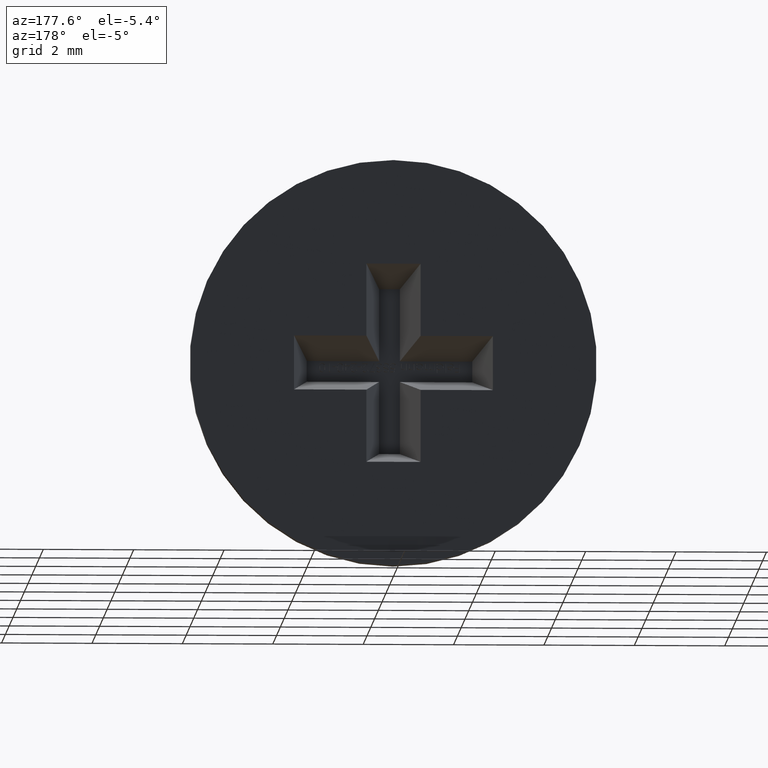
[diagram: clean part render]
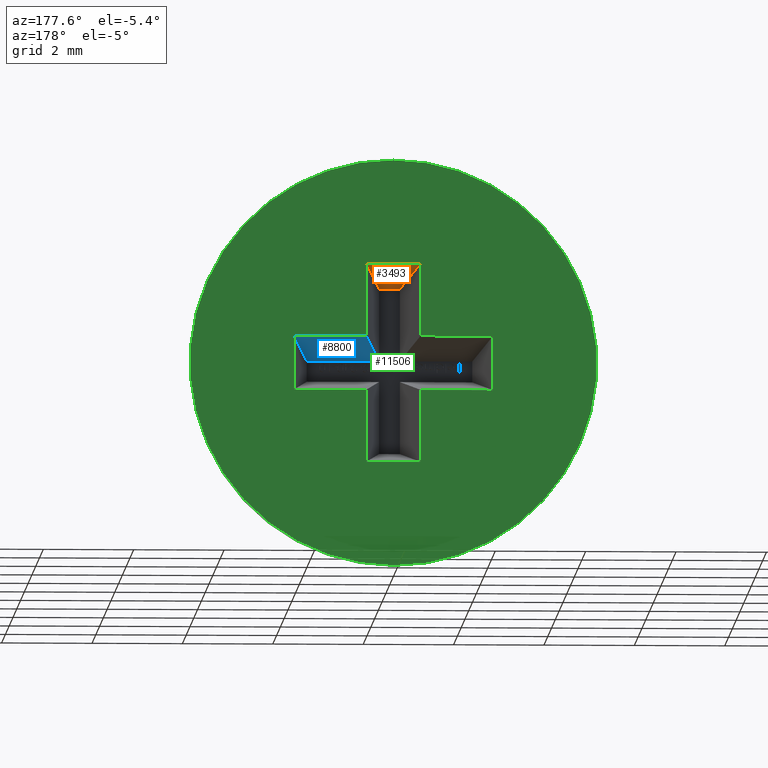
[diagram: same view with three faces highlighted in distinct colors, each labeled with its STEP entity id]
A machine part, auxiliary view with three faces highlighted in distinct colors.
Their STEP definitions:

[orange] entity #3493 — the highlighted planar face has unit normal (0, -0.1736, 0.9848).
#747 = LINE ( 'NONE', #11670, #7813 ) ;
#1861 = FACE_OUTER_BOUND ( 'NONE', #8673, .T. ) ;
#2108 = EDGE_CURVE ( 'NONE', #9832, #11550, #6100, .T. ) ;
#2324 = ORIENTED_EDGE ( 'NONE', *, *, #8225, .T. ) ;
#2517 = DIRECTION ( 'NONE',  ( 0.1710878697460355400, 0.9702875252478139200, 0.1710878697460355400 ) ) ;
#2919 = VECTOR ( 'NONE', #8507, 1000.000000000000000 ) ;
#3493 = ADVANCED_FACE ( 'NONE', ( #1861 ), #13533, .F. ) ;
#3622 = CARTESIAN_POINT ( 'NONE',  ( -0.5531663053212211300, 9.734392918822719000, 2.153166305321222200 ) ) ;
#3802 = LINE ( 'NONE', #3622, #12905 ) ;
#4331 = CARTESIAN_POINT ( 'NONE',  ( 0.6000000000000005300, 10.00000000000000000, 2.200000000000000200 ) ) ;
#4406 = CARTESIAN_POINT ( 'NONE',  ( 0.2297133405122240800, 7.900000000000000400, 1.829713340512223700 ) ) ;
#4957 = DIRECTION ( 'NONE',  ( 1.000000000000000000, 0.0000000000000000000, 0.0000000000000000000 ) ) ;
#5247 = VERTEX_POINT ( 'NONE', #9698 ) ;
#6100 = LINE ( 'NONE', #8229, #14521 ) ;
#7813 = VECTOR ( 'NONE', #4957, 1000.000000000000000 ) ;
#8225 = EDGE_CURVE ( 'NONE', #5247, #10188, #3802, .T. ) ;
#8229 = CARTESIAN_POINT ( 'NONE',  ( 0.5648747289909168400, 9.800794689117038800, 2.164874728990916300 ) ) ;
#8507 = DIRECTION ( 'NONE',  ( 1.000000000000000000, 0.0000000000000000000, 0.0000000000000000000 ) ) ;
#8673 = EDGE_LOOP ( 'NONE', ( #12567, #10295, #9049, #2324 ) ) ;
#9049 = ORIENTED_EDGE ( 'NONE', *, *, #10021, .F. ) ;
#9123 = DIRECTION ( 'NONE',  ( -0.1710878697460355100, 0.9702875252478139200, 0.1710878697460355400 ) ) ;
#9397 = LINE ( 'NONE', #11776, #2919 ) ;
#9698 = CARTESIAN_POINT ( 'NONE',  ( -0.2297133405122230600, 7.900000000000000400, 1.829713340512223700 ) ) ;
#9832 = VERTEX_POINT ( 'NONE', #4406 ) ;
#10021 = EDGE_CURVE ( 'NONE', #5247, #9832, #9397, .T. ) ;
#10188 = VERTEX_POINT ( 'NONE', #12262 ) ;
#10295 = ORIENTED_EDGE ( 'NONE', *, *, #2108, .F. ) ;
#10370 = EDGE_CURVE ( 'NONE', #10188, #11550, #747, .T. ) ;
#10589 = CARTESIAN_POINT ( 'NONE',  ( -0.5999999999999994200, 10.00000000000000000, 2.200000000000000200 ) ) ;
#11550 = VERTEX_POINT ( 'NONE', #4331 ) ;
#11658 = DIRECTION ( 'NONE',  ( 0.0000000000000000000, -0.9848077530122080200, -0.1736481776669303600 ) ) ;
#11670 = CARTESIAN_POINT ( 'NONE',  ( -0.5999999999999994200, 10.00000000000000000, 2.200000000000000200 ) ) ;
#11776 = CARTESIAN_POINT ( 'NONE',  ( -0.5999999999999994200, 7.900000000000000400, 1.829713340512223700 ) ) ;
#12262 = CARTESIAN_POINT ( 'NONE',  ( -0.5999999999999994200, 10.00000000000000000, 2.200000000000000200 ) ) ;
#12496 = AXIS2_PLACEMENT_3D ( 'NONE', #10589, #12682, #11658 ) ;
#12567 = ORIENTED_EDGE ( 'NONE', *, *, #10370, .T. ) ;
#12682 = DIRECTION ( 'NONE',  ( 0.0000000000000000000, -0.1736481776669303900, 0.9848077530122081300 ) ) ;
#12905 = VECTOR ( 'NONE', #9123, 1000.000000000000100 ) ;
#13533 = PLANE ( 'NONE',  #12496 ) ;
#14521 = VECTOR ( 'NONE', #2517, 1000.000000000000100 ) ;

[blue] entity #8800 — the highlighted planar face has unit normal (0, -0.1736, 0.9848).
#47 = DIRECTION ( 'NONE',  ( 1.000000000000000000, 0.0000000000000000000, 0.0000000000000000000 ) ) ;
#120 = EDGE_CURVE ( 'NONE', #1582, #12308, #4032, .T. ) ;
#129 = CARTESIAN_POINT ( 'NONE',  ( 2.200000000000000600, 10.00000000000000000, 0.5999999999999999800 ) ) ;
#238 = DIRECTION ( 'NONE',  ( 0.1710878697460355400, 0.9702875252478139200, 0.1710878697460355400 ) ) ;
#259 = VECTOR ( 'NONE', #47, 1000.000000000000000 ) ;
#560 = ORIENTED_EDGE ( 'NONE', *, *, #120, .T. ) ;
#824 = EDGE_LOOP ( 'NONE', ( #11819, #3402, #8449, #560 ) ) ;
#1141 = CARTESIAN_POINT ( 'NONE',  ( 0.6000000000000005300, 10.00000000000000000, 0.5999999999999999800 ) ) ;
#1558 = VERTEX_POINT ( 'NONE', #129 ) ;
#1582 = VERTEX_POINT ( 'NONE', #8093 ) ;
#3402 = ORIENTED_EDGE ( 'NONE', *, *, #8584, .F. ) ;
#4032 = LINE ( 'NONE', #6972, #10704 ) ;
#4313 = VECTOR ( 'NONE', #4557, 1000.000000000000000 ) ;
#4502 = LINE ( 'NONE', #11965, #14476 ) ;
#4550 = DIRECTION ( 'NONE',  ( 0.0000000000000000000, -0.1736481776669303900, 0.9848077530122081300 ) ) ;
#4557 = DIRECTION ( 'NONE',  ( 1.000000000000000000, 0.0000000000000000000, 0.0000000000000000000 ) ) ;
#6527 = DIRECTION ( 'NONE',  ( 0.1710878697460355400, 0.9702875252478139200, 0.1710878697460355400 ) ) ;
#6972 = CARTESIAN_POINT ( 'NONE',  ( 0.6000000000000005300, 10.00000000000000000, 0.5999999999999999800 ) ) ;
#7753 = AXIS2_PLACEMENT_3D ( 'NONE', #10149, #4550, #12356 ) ;
#7930 = PLANE ( 'NONE',  #7753 ) ;
#8093 = CARTESIAN_POINT ( 'NONE',  ( 0.2297133405122240800, 7.900000000000000400, 0.2297133405122235600 ) ) ;
#8449 = ORIENTED_EDGE ( 'NONE', *, *, #9014, .F. ) ;
#8584 = EDGE_CURVE ( 'NONE', #8746, #1558, #4502, .T. ) ;
#8746 = VERTEX_POINT ( 'NONE', #11193 ) ;
#8800 = ADVANCED_FACE ( 'NONE', ( #12714 ), #7930, .F. ) ;
#9014 = EDGE_CURVE ( 'NONE', #1582, #8746, #13431, .T. ) ;
#10149 = CARTESIAN_POINT ( 'NONE',  ( 0.6000000000000005300, 10.00000000000000000, 0.5999999999999999800 ) ) ;
#10704 = VECTOR ( 'NONE', #238, 1000.000000000000100 ) ;
#11098 = EDGE_CURVE ( 'NONE', #12308, #1558, #12367, .T. ) ;
#11193 = CARTESIAN_POINT ( 'NONE',  ( 1.829713340512224100, 7.900000000000000400, 0.2297133405122235600 ) ) ;
#11235 = CARTESIAN_POINT ( 'NONE',  ( 0.6000000000000005300, 7.900000000000000400, 0.2297133405122235600 ) ) ;
#11819 = ORIENTED_EDGE ( 'NONE', *, *, #11098, .T. ) ;
#11965 = CARTESIAN_POINT ( 'NONE',  ( 2.153166305321222700, 9.734392918822719000, 0.5531663053212216900 ) ) ;
#12308 = VERTEX_POINT ( 'NONE', #14428 ) ;
#12356 = DIRECTION ( 'NONE',  ( 0.0000000000000000000, -0.9848077530122080200, -0.1736481776669303600 ) ) ;
#12367 = LINE ( 'NONE', #1141, #4313 ) ;
#12714 = FACE_OUTER_BOUND ( 'NONE', #824, .T. ) ;
#13431 = LINE ( 'NONE', #11235, #259 ) ;
#14428 = CARTESIAN_POINT ( 'NONE',  ( 0.6000000000000005300, 10.00000000000000000, 0.5999999999999999800 ) ) ;
#14476 = VECTOR ( 'NONE', #6527, 1000.000000000000100 ) ;

[green] entity #11506 — the highlighted planar face has unit normal (0, 1, 0).
#129 = CARTESIAN_POINT ( 'NONE',  ( 2.200000000000000600, 10.00000000000000000, 0.5999999999999999800 ) ) ;
#223 = CARTESIAN_POINT ( 'NONE',  ( -0.5999999999999996400, 10.00000000000000000, 0.5999999999999999800 ) ) ;
#260 = VERTEX_POINT ( 'NONE', #8926 ) ;
#336 = CARTESIAN_POINT ( 'NONE',  ( -0.5999999999999996400, 10.00000000000000000, -0.5999999999999999800 ) ) ;
#425 = VECTOR ( 'NONE', #12482, 1000.000000000000000 ) ;
#439 = VECTOR ( 'NONE', #3107, 1000.000000000000000 ) ;
#495 = CARTESIAN_POINT ( 'NONE',  ( 0.6000000000000005300, 10.00000000000000000, 0.5999999999999999800 ) ) ;
#589 = LINE ( 'NONE', #10852, #2914 ) ;
#707 = CARTESIAN_POINT ( 'NONE',  ( -2.199999999999999700, 10.00000000000000000, -0.5999999999999999800 ) ) ;
#718 = ORIENTED_EDGE ( 'NONE', *, *, #10370, .F. ) ;
#747 = LINE ( 'NONE', #11670, #7813 ) ;
#817 = LINE ( 'NONE', #2405, #11712 ) ;
#831 = CIRCLE ( 'NONE', #4549, 4.500000000000000000 ) ;
#1141 = CARTESIAN_POINT ( 'NONE',  ( 0.6000000000000005300, 10.00000000000000000, 0.5999999999999999800 ) ) ;
#1193 = EDGE_CURVE ( 'NONE', #6330, #6330, #831, .T. ) ;
#1558 = VERTEX_POINT ( 'NONE', #129 ) ;
#1585 = DIRECTION ( 'NONE',  ( -0.0000000000000000000, -0.0000000000000000000, -1.000000000000000000 ) ) ;
#1628 = AXIS2_PLACEMENT_3D ( 'NONE', #5352, #11131, #6471 ) ;
#1883 = VECTOR ( 'NONE', #1585, 1000.000000000000000 ) ;
#2151 = VECTOR ( 'NONE', #10425, 1000.000000000000000 ) ;
#2405 = CARTESIAN_POINT ( 'NONE',  ( 0.5999999999999999800, 10.00000000000000000, -2.200000000000000200 ) ) ;
#2473 = EDGE_CURVE ( 'NONE', #5036, #10949, #817, .T. ) ;
#2633 = ORIENTED_EDGE ( 'NONE', *, *, #11486, .F. ) ;
#2780 = EDGE_CURVE ( 'NONE', #6621, #12772, #4168, .T. ) ;
#2914 = VECTOR ( 'NONE', #11738, 1000.000000000000000 ) ;
#3107 = DIRECTION ( 'NONE',  ( -1.000000000000000000, -0.0000000000000000000, -0.0000000000000000000 ) ) ;
#3144 = LINE ( 'NONE', #495, #1883 ) ;
#3292 = DIRECTION ( 'NONE',  ( 0.0000000000000000000, 0.0000000000000000000, 1.000000000000000000 ) ) ;
#4130 = ORIENTED_EDGE ( 'NONE', *, *, #11098, .F. ) ;
#4168 = LINE ( 'NONE', #14204, #12043 ) ;
#4180 = EDGE_LOOP ( 'NONE', ( #11800 ) ) ;
#4292 = ORIENTED_EDGE ( 'NONE', *, *, #6049, .F. ) ;
#4313 = VECTOR ( 'NONE', #4557, 1000.000000000000000 ) ;
#4331 = CARTESIAN_POINT ( 'NONE',  ( 0.6000000000000005300, 10.00000000000000000, 2.200000000000000200 ) ) ;
#4421 = VERTEX_POINT ( 'NONE', #7516 ) ;
#4480 = EDGE_CURVE ( 'NONE', #7635, #6621, #8358, .T. ) ;
#4549 = AXIS2_PLACEMENT_3D ( 'NONE', #7035, #7134, #13793 ) ;
#4557 = DIRECTION ( 'NONE',  ( 1.000000000000000000, 0.0000000000000000000, 0.0000000000000000000 ) ) ;
#4598 = CARTESIAN_POINT ( 'NONE',  ( -0.5999999999999999800, 10.00000000000000000, -2.200000000000000200 ) ) ;
#4724 = DIRECTION ( 'NONE',  ( -2.032879073410320300E-016, -0.0000000000000000000, -1.000000000000000000 ) ) ;
#4957 = DIRECTION ( 'NONE',  ( 1.000000000000000000, 0.0000000000000000000, 0.0000000000000000000 ) ) ;
#5036 = VERTEX_POINT ( 'NONE', #13112 ) ;
#5333 = CARTESIAN_POINT ( 'NONE',  ( -0.5999999999999999800, 10.00000000000000000, -2.200000000000000200 ) ) ;
#5352 = CARTESIAN_POINT ( 'NONE',  ( 0.0000000000000000000, 10.00000000000000000, 0.0000000000000000000 ) ) ;
#6042 = VECTOR ( 'NONE', #8499, 1000.000000000000000 ) ;
#6049 = EDGE_CURVE ( 'NONE', #10949, #11119, #12234, .T. ) ;
#6263 = ORIENTED_EDGE ( 'NONE', *, *, #2780, .F. ) ;
#6310 = EDGE_CURVE ( 'NONE', #11550, #12308, #3144, .T. ) ;
#6330 = VERTEX_POINT ( 'NONE', #10070 ) ;
#6471 = DIRECTION ( 'NONE',  ( 0.0000000000000000000, -0.0000000000000000000, 1.000000000000000000 ) ) ;
#6621 = VERTEX_POINT ( 'NONE', #10420 ) ;
#6881 = ORIENTED_EDGE ( 'NONE', *, *, #2473, .F. ) ;
#7035 = CARTESIAN_POINT ( 'NONE',  ( 0.0000000000000000000, 10.00000000000000000, 0.0000000000000000000 ) ) ;
#7134 = DIRECTION ( 'NONE',  ( -0.0000000000000000000, -1.000000000000000000, -0.0000000000000000000 ) ) ;
#7368 = CARTESIAN_POINT ( 'NONE',  ( -2.199999999999999700, 10.00000000000000000, 0.5999999999999999800 ) ) ;
#7516 = CARTESIAN_POINT ( 'NONE',  ( 2.200000000000000600, 10.00000000000000000, -0.5999999999999999800 ) ) ;
#7635 = VERTEX_POINT ( 'NONE', #336 ) ;
#7640 = LINE ( 'NONE', #223, #425 ) ;
#7716 = ORIENTED_EDGE ( 'NONE', *, *, #13895, .F. ) ;
#7813 = VECTOR ( 'NONE', #4957, 1000.000000000000000 ) ;
#8358 = LINE ( 'NONE', #707, #439 ) ;
#8499 = DIRECTION ( 'NONE',  ( 1.000000000000000000, 0.0000000000000000000, 0.0000000000000000000 ) ) ;
#8561 = EDGE_CURVE ( 'NONE', #1558, #4421, #589, .T. ) ;
#8660 = VECTOR ( 'NONE', #9850, 1000.000000000000000 ) ;
#8722 = CARTESIAN_POINT ( 'NONE',  ( 0.5999999999999999800, 10.00000000000000000, -2.200000000000000200 ) ) ;
#8926 = CARTESIAN_POINT ( 'NONE',  ( -0.5999999999999996400, 10.00000000000000000, 0.5999999999999999800 ) ) ;
#9048 = FACE_BOUND ( 'NONE', #10073, .T. ) ;
#9701 = ORIENTED_EDGE ( 'NONE', *, *, #6310, .F. ) ;
#9850 = DIRECTION ( 'NONE',  ( 2.032879073410320300E-016, 0.0000000000000000000, 1.000000000000000000 ) ) ;
#10070 = CARTESIAN_POINT ( 'NONE',  ( 0.0000000000000000000, 10.00000000000000000, -4.500000000000000000 ) ) ;
#10073 = EDGE_LOOP ( 'NONE', ( #4292, #6881, #13286, #11129, #4130, #9701, #718, #13352, #2633, #6263, #14074, #7716 ) ) ;
#10188 = VERTEX_POINT ( 'NONE', #12262 ) ;
#10274 = LINE ( 'NONE', #7368, #6042 ) ;
#10370 = EDGE_CURVE ( 'NONE', #10188, #11550, #747, .T. ) ;
#10420 = CARTESIAN_POINT ( 'NONE',  ( -2.199999999999999700, 10.00000000000000000, -0.5999999999999999800 ) ) ;
#10425 = DIRECTION ( 'NONE',  ( -1.000000000000000000, -0.0000000000000000000, -0.0000000000000000000 ) ) ;
#10713 = EDGE_CURVE ( 'NONE', #260, #10188, #7640, .T. ) ;
#10852 = CARTESIAN_POINT ( 'NONE',  ( 2.200000000000000600, 10.00000000000000000, -0.5999999999999999800 ) ) ;
#10949 = VERTEX_POINT ( 'NONE', #8722 ) ;
#11098 = EDGE_CURVE ( 'NONE', #12308, #1558, #12367, .T. ) ;
#11119 = VERTEX_POINT ( 'NONE', #4598 ) ;
#11129 = ORIENTED_EDGE ( 'NONE', *, *, #8561, .F. ) ;
#11131 = DIRECTION ( 'NONE',  ( 0.0000000000000000000, 1.000000000000000000, 0.0000000000000000000 ) ) ;
#11486 = EDGE_CURVE ( 'NONE', #12772, #260, #10274, .T. ) ;
#11506 = ADVANCED_FACE ( 'NONE', ( #9048, #11993 ), #13183, .T. ) ;
#11550 = VERTEX_POINT ( 'NONE', #4331 ) ;
#11621 = LINE ( 'NONE', #13339, #8660 ) ;
#11670 = CARTESIAN_POINT ( 'NONE',  ( -0.5999999999999994200, 10.00000000000000000, 2.200000000000000200 ) ) ;
#11712 = VECTOR ( 'NONE', #4724, 1000.000000000000000 ) ;
#11729 = CARTESIAN_POINT ( 'NONE',  ( 0.6000000000000003100, 10.00000000000000000, -0.5999999999999999800 ) ) ;
#11738 = DIRECTION ( 'NONE',  ( -0.0000000000000000000, -0.0000000000000000000, -1.000000000000000000 ) ) ;
#11785 = LINE ( 'NONE', #11729, #2151 ) ;
#11800 = ORIENTED_EDGE ( 'NONE', *, *, #1193, .F. ) ;
#11993 = FACE_OUTER_BOUND ( 'NONE', #4180, .T. ) ;
#12043 = VECTOR ( 'NONE', #3292, 1000.000000000000000 ) ;
#12234 = LINE ( 'NONE', #5333, #13470 ) ;
#12262 = CARTESIAN_POINT ( 'NONE',  ( -0.5999999999999994200, 10.00000000000000000, 2.200000000000000200 ) ) ;
#12308 = VERTEX_POINT ( 'NONE', #14428 ) ;
#12367 = LINE ( 'NONE', #1141, #4313 ) ;
#12482 = DIRECTION ( 'NONE',  ( 1.355252715606880300E-016, 0.0000000000000000000, 1.000000000000000000 ) ) ;
#12637 = CARTESIAN_POINT ( 'NONE',  ( -2.199999999999999700, 10.00000000000000000, 0.5999999999999999800 ) ) ;
#12772 = VERTEX_POINT ( 'NONE', #12637 ) ;
#13112 = CARTESIAN_POINT ( 'NONE',  ( 0.6000000000000003100, 10.00000000000000000, -0.5999999999999999800 ) ) ;
#13183 = PLANE ( 'NONE',  #1628 ) ;
#13213 = DIRECTION ( 'NONE',  ( -1.000000000000000000, -0.0000000000000000000, -0.0000000000000000000 ) ) ;
#13286 = ORIENTED_EDGE ( 'NONE', *, *, #13674, .F. ) ;
#13339 = CARTESIAN_POINT ( 'NONE',  ( -0.5999999999999999800, 10.00000000000000000, -2.200000000000000200 ) ) ;
#13352 = ORIENTED_EDGE ( 'NONE', *, *, #10713, .F. ) ;
#13470 = VECTOR ( 'NONE', #13213, 1000.000000000000000 ) ;
#13674 = EDGE_CURVE ( 'NONE', #4421, #5036, #11785, .T. ) ;
#13793 = DIRECTION ( 'NONE',  ( 0.0000000000000000000, 0.0000000000000000000, -1.000000000000000000 ) ) ;
#13895 = EDGE_CURVE ( 'NONE', #11119, #7635, #11621, .T. ) ;
#14074 = ORIENTED_EDGE ( 'NONE', *, *, #4480, .F. ) ;
#14204 = CARTESIAN_POINT ( 'NONE',  ( -2.199999999999999700, 10.00000000000000000, -0.5999999999999999800 ) ) ;
#14428 = CARTESIAN_POINT ( 'NONE',  ( 0.6000000000000005300, 10.00000000000000000, 0.5999999999999999800 ) ) ;